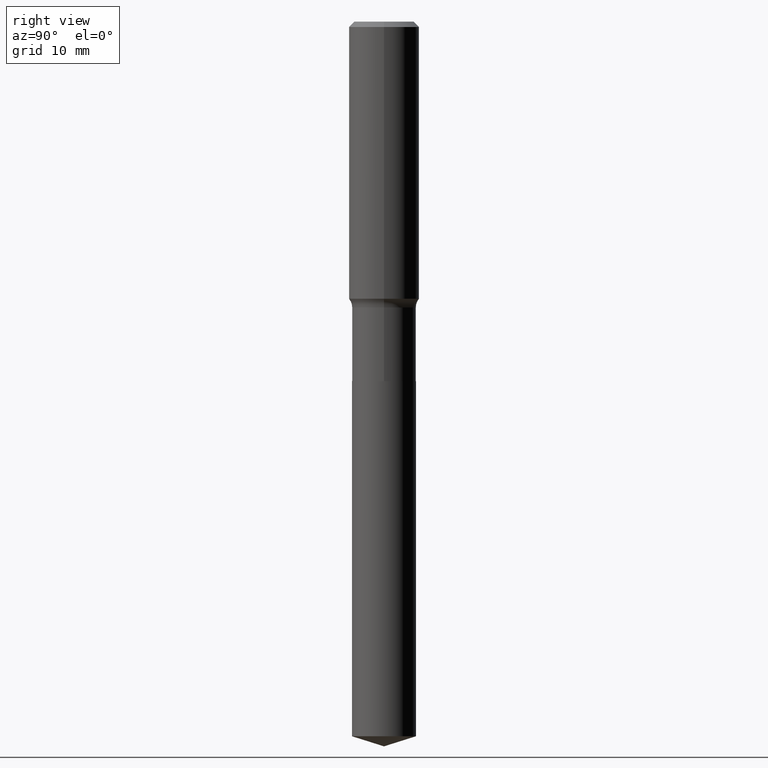
[diagram: clean part render]
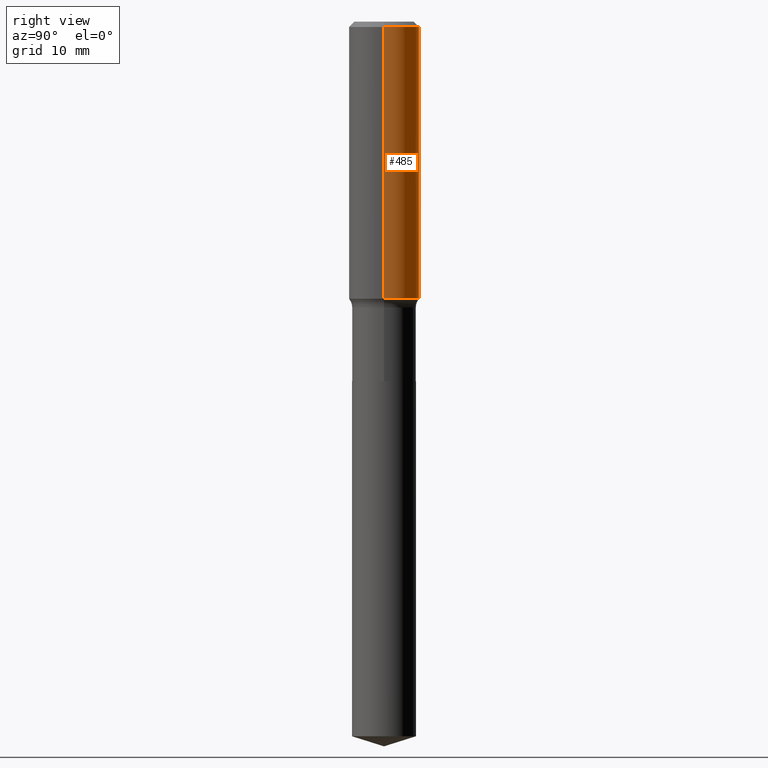
[diagram: same view with one face highlighted and labeled with its STEP entity id]
A machine part, right view. The second image highlights one B-rep face of the part: STEP entity #485.
In plain terms, the highlighted cylindrical surface (edge-blend (fillet) strip) has radius 5 mm, axis along (-0, 0, 1).
Its self-contained STEP definition (entity closure, byte-faithful):
#6 = CARTESIAN_POINT ( 'NONE',  ( 0.000000000000000000, 0.000000000000000000, 0.000000000000000000 ) ) ;
#22 = EDGE_CURVE ( 'NONE', #37, #308, #204, .T. ) ;
#37 = VERTEX_POINT ( 'NONE', #432 ) ;
#45 = DIRECTION ( 'NONE',  ( 1.000000000000000000, -6.982962677686265133E-15, 0.000000000000000000 ) ) ;
#75 = EDGE_CURVE ( 'NONE', #88, #308, #367, .T. ) ;
#80 = CYLINDRICAL_SURFACE ( 'NONE', #149, 0.1968500000000001360 ) ;
#82 = EDGE_LOOP ( 'NONE', ( #347, #358, #281, #201 ) ) ;
#84 = EDGE_CURVE ( 'NONE', #206, #37, #254, .T. ) ;
#88 = VERTEX_POINT ( 'NONE', #285 ) ;
#130 = DIRECTION ( 'NONE',  ( -2.445468806185136597E-29, 3.491481338843145583E-15, 1.000000000000000000 ) ) ;
#149 = AXIS2_PLACEMENT_3D ( 'NONE', #6, #460, #378 ) ;
#160 = CARTESIAN_POINT ( 'NONE',  ( -0.1968500000000001360, 1.398703375343758182E-15, -9.682923725166790684E-30 ) ) ;
#171 = CARTESIAN_POINT ( 'NONE',  ( -0.1968500000000000527, -1.359307014894414655E-15, -0.02952750000000019595 ) ) ;
#177 = AXIS2_PLACEMENT_3D ( 'NONE', #318, #130, #45 ) ;
#186 = VECTOR ( 'NONE', #365, 39.37007874015748143 ) ;
#201 = ORIENTED_EDGE ( 'NONE', *, *, #264, .F. ) ;
#204 = LINE ( 'NONE', #160, #446 ) ;
#206 = VERTEX_POINT ( 'NONE', #411 ) ;
#254 = CIRCLE ( 'NONE', #177, 0.1968500000000002470 ) ;
#264 = EDGE_CURVE ( 'NONE', #206, #88, #467, .T. ) ;
#281 = ORIENTED_EDGE ( 'NONE', *, *, #75, .F. ) ;
#285 = CARTESIAN_POINT ( 'NONE',  ( 0.1968500000000000527, -1.477690918335233688E-15, -0.02952750000000019595 ) ) ;
#308 = VERTEX_POINT ( 'NONE', #171 ) ;
#318 = CARTESIAN_POINT ( 'NONE',  ( 3.791268106025666650E-29, -5.412926065243654777E-15, -1.550323642009541425 ) ) ;
#321 = DIRECTION ( 'NONE',  ( -2.445468806185136597E-29, 3.491481338843145583E-15, 1.000000000000000000 ) ) ;
#322 = CARTESIAN_POINT ( 'NONE',  ( 0.1968500000000001360, -1.374596203102542594E-15, 9.598753983154306463E-30 ) ) ;
#347 = ORIENTED_EDGE ( 'NONE', *, *, #84, .T. ) ;
#358 = ORIENTED_EDGE ( 'NONE', *, *, #22, .T. ) ;
#365 = DIRECTION ( 'NONE',  ( -2.445468806185136877E-29, 3.491481338843145188E-15, 1.000000000000000000 ) ) ;
#367 = CIRCLE ( 'NONE', #396, 0.1968500000000000527 ) ;
#378 = DIRECTION ( 'NONE',  ( 1.000000000000000000, -6.982962677686266711E-15, 4.876176775795935793E-29 ) ) ;
#381 = FACE_OUTER_BOUND ( 'NONE', #82, .T. ) ;
#388 = CARTESIAN_POINT ( 'NONE',  ( 7.220858017463209485E-31, -1.030947152326916609E-16, -0.02952750000000019595 ) ) ;
#396 = AXIS2_PLACEMENT_3D ( 'NONE', #388, #321, #473 ) ;
#411 = CARTESIAN_POINT ( 'NONE',  ( 0.1968500000000002470, -6.787522268346197963E-15, -1.550323642009541425 ) ) ;
#432 = CARTESIAN_POINT ( 'NONE',  ( -0.1968500000000002470, -4.014222689899896200E-15, -1.550323642009541425 ) ) ;
#446 = VECTOR ( 'NONE', #463, 39.37007874015748143 ) ;
#460 = DIRECTION ( 'NONE',  ( -2.445468806185136597E-29, 3.491481338843145583E-15, 1.000000000000000000 ) ) ;
#463 = DIRECTION ( 'NONE',  ( -2.445468806185136877E-29, 3.491481338843145188E-15, 1.000000000000000000 ) ) ;
#467 = LINE ( 'NONE', #322, #186 ) ;
#473 = DIRECTION ( 'NONE',  ( 1.000000000000000000, -6.982962677686266711E-15, 0.000000000000000000 ) ) ;
#485 = ADVANCED_FACE ( 'NONE', ( #381 ), #80, .T. ) ;